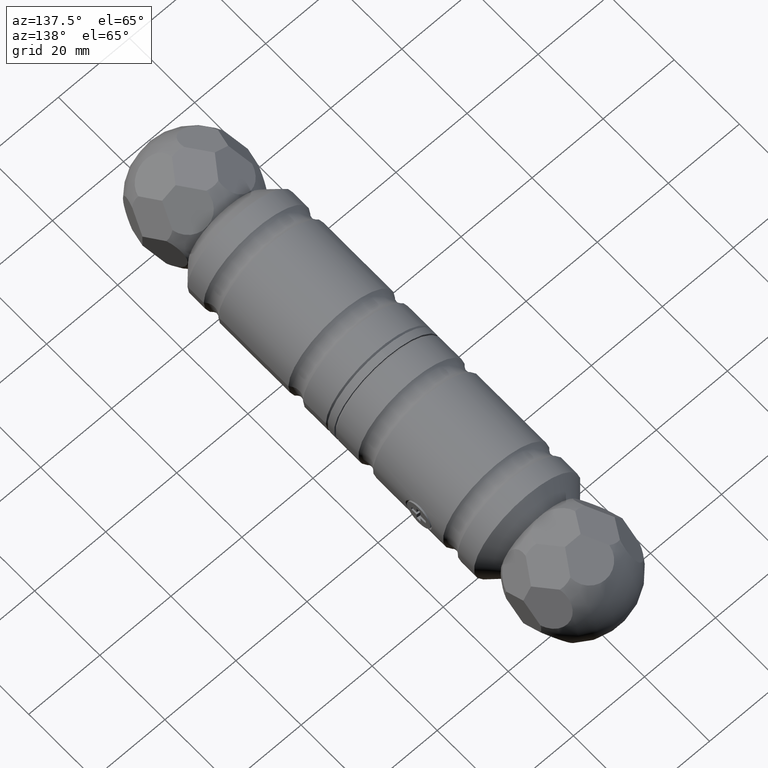
[diagram: clean part render]
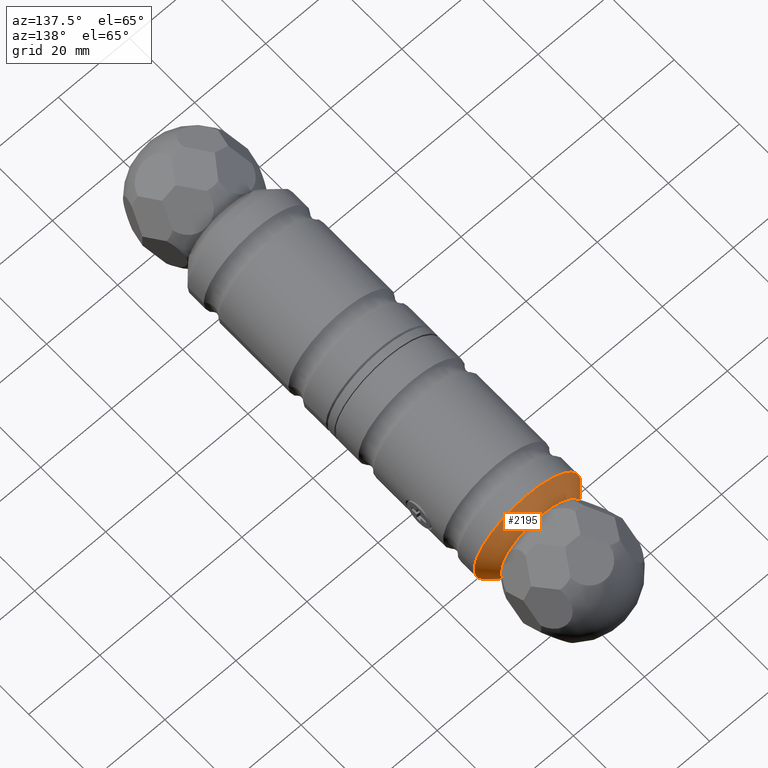
[diagram: same view with one face highlighted and labeled with its STEP entity id]
A machine part, auxiliary view. The second image highlights one B-rep face of the part: STEP entity #2195.
In plain terms, the highlighted conical surface has half-angle 43.679 deg.
Its self-contained STEP definition (entity closure, byte-faithful):
#107 = EDGE_LOOP ( 'NONE', ( #4177 ) ) ;
#308 = VERTEX_POINT ( 'NONE', #11547 ) ;
#328 = DIRECTION ( 'NONE',  ( 0.000000000000000000, -1.000000000000000000, 4.565411374750538205E-34 ) ) ;
#910 = DIRECTION ( 'NONE',  ( 1.000000000000000000, 0.000000000000000000, 0.000000000000000000 ) ) ;
#1532 = ORIENTED_EDGE ( 'NONE', *, *, #2429, .T. ) ;
#1888 = AXIS2_PLACEMENT_3D ( 'NONE', #8007, #11476, #910 ) ;
#2195 = ADVANCED_FACE ( 'NONE', ( #9212, #7559 ), #4093, .T. ) ;
#2429 = EDGE_CURVE ( 'NONE', #12840, #12840, #6445, .T. ) ;
#3855 = DIRECTION ( 'NONE',  ( 1.000000000000000000, 0.000000000000000000, 0.000000000000000000 ) ) ;
#4093 = CONICAL_SURFACE ( 'NONE', #1888, 15.00000000000000355, 0.7623398817748174849 ) ;
#4177 = ORIENTED_EDGE ( 'NONE', *, *, #12202, .F. ) ;
#4790 = DIRECTION ( 'NONE',  ( 0.000000000000000000, 0.000000000000000000, -1.000000000000000000 ) ) ;
#4941 = CARTESIAN_POINT ( 'NONE',  ( 2.002967142162725287E-29, 46.99999999999998579, -6.861125426879527727E-30 ) ) ;
#6445 = CIRCLE ( 'NONE', #7536, 11.18033988749895791 ) ;
#7250 = CIRCLE ( 'NONE', #7364, 15.00000000000000355 ) ;
#7364 = AXIS2_PLACEMENT_3D ( 'NONE', #10931, #7368, #3855 ) ;
#7368 = DIRECTION ( 'NONE',  ( 2.749845802210131355E-18, -1.000000000000000000, 3.156723069978683249E-34 ) ) ;
#7536 = AXIS2_PLACEMENT_3D ( 'NONE', #4941, #328, #4790 ) ;
#7559 = FACE_OUTER_BOUND ( 'NONE', #107, .T. ) ;
#8007 = CARTESIAN_POINT ( 'NONE',  ( -1.182433694950036008E-16, 42.99999999999998579, 4.453712996395482910E-31 ) ) ;
#9212 = FACE_BOUND ( 'NONE', #11478, .T. ) ;
#10931 = CARTESIAN_POINT ( 'NONE',  ( -1.182433694950036008E-16, 42.99999999999998579, 4.453712996395482910E-31 ) ) ;
#11476 = DIRECTION ( 'NONE',  ( 2.749845802210131355E-18, -1.000000000000000000, 3.156723069978683249E-34 ) ) ;
#11478 = EDGE_LOOP ( 'NONE', ( #1532 ) ) ;
#11547 = CARTESIAN_POINT ( 'NONE',  ( 15.00000000000000355, 42.99999999999998579, 4.453712996395482910E-31 ) ) ;
#12202 = EDGE_CURVE ( 'NONE', #308, #308, #7250, .T. ) ;
#12840 = VERTEX_POINT ( 'NONE', #14992 ) ;
#14992 = CARTESIAN_POINT ( 'NONE',  ( 2.002967142162725287E-29, 46.99999999999998579, -11.18033988749895791 ) ) ;